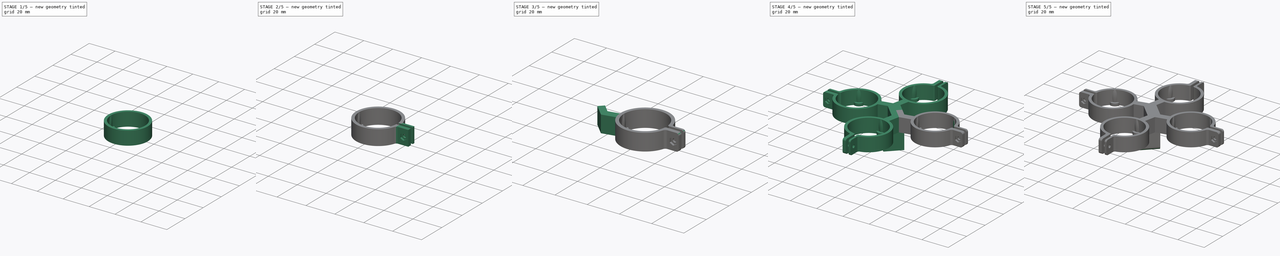
[diagram: build sequence overview — one tinted view per stage of 5, left to right]
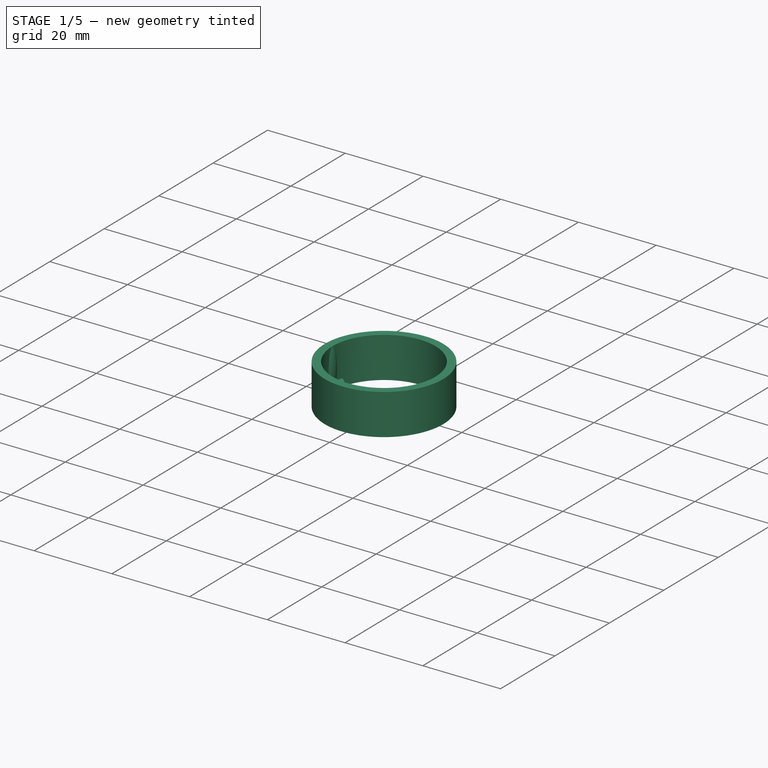
[diagram: stage 1 of 5 — iso view after this stage's code; geometry added in this stage tinted green]
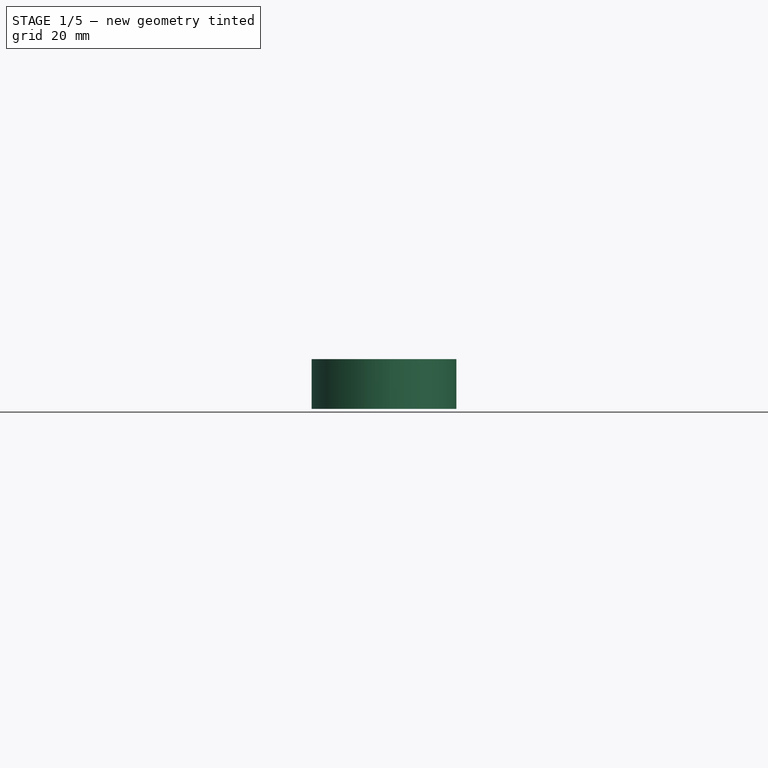
[diagram: stage 1 of 5 — front view after this stage's code; geometry added in this stage tinted green]
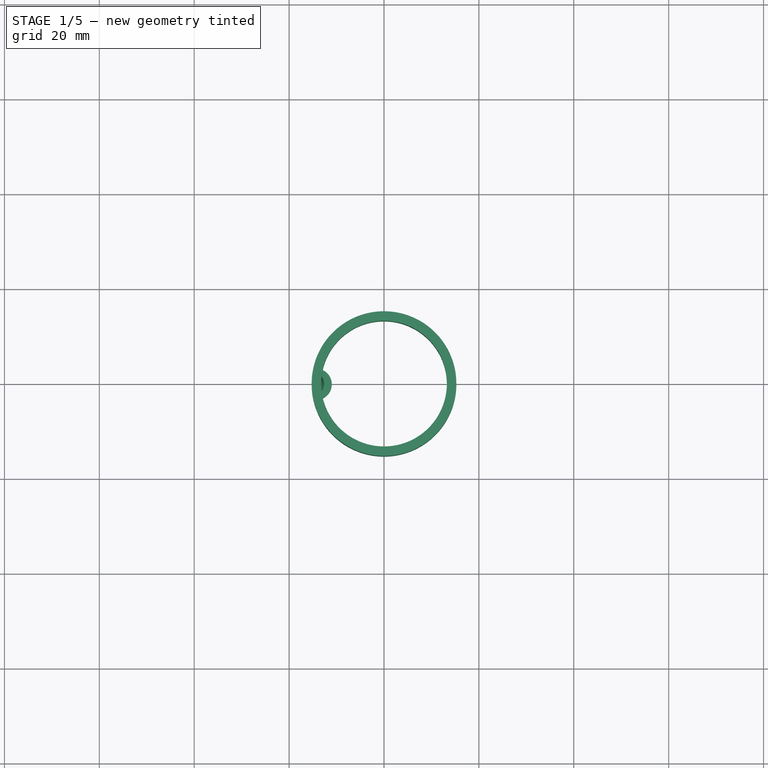
[diagram: stage 1 of 5 — top view after this stage's code; geometry added in this stage tinted green]
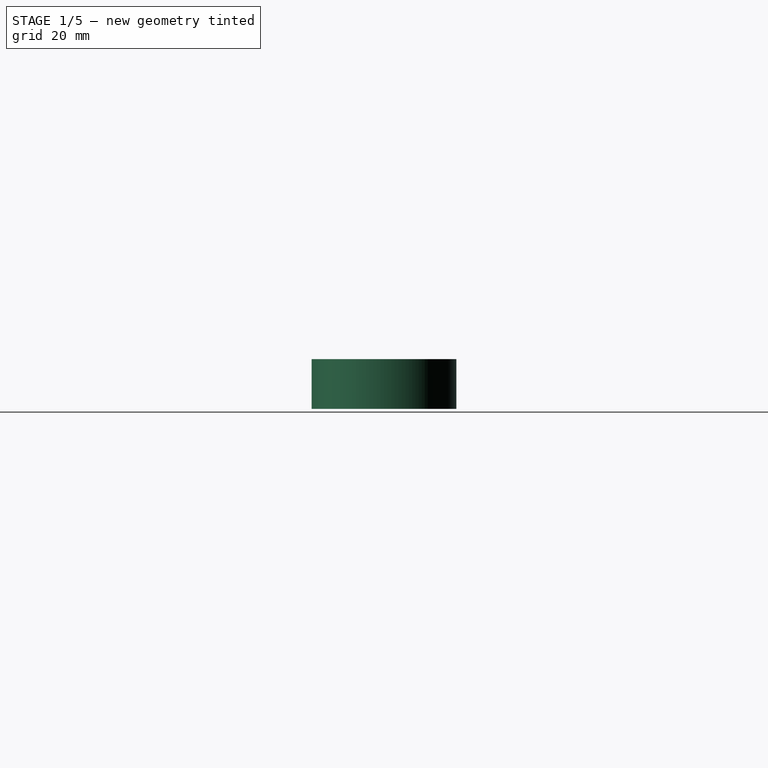
[diagram: stage 1 of 5 — right view after this stage's code; geometry added in this stage tinted green]
FCSTD DOCUMENT  (FreeCAD 0.19R)
Label: filter_holder
License: All rights reserved
LicenseURL: http://en.wikipedia.org/wiki/All_rights_reserved
objects: Sketcher::SketchObject×10, PartDesign::Pad×5, PartDesign::Fillet×4, PartDesign::Mirrored×3, PartDesign::MultiTransform×3, PartDesign::PolarPattern×3, PartDesign::Line×2, PartDesign::Hole×2, PartDesign::Pocket×2, PartDesign::Plane×2, PartDesign::Revolution×1, PartDesign::CoordinateSystem×1, PartDesign::Body×1
note: 53 computed .brp shape members not serialized (recipe doc carries the construction recipe); baked Part::Feature solids carry a one-line shape summary decoded from their .brp

FEATURE [Sketcher::SketchObject] Sketch  label="ring_base_sk"
  FullyConstrained = true
  MapMode = 5
  Support = -> [XY_Plane]
  sketch-geometry (2):
    g0: Circle CenterX=0 CenterY=0 CenterZ=0 NormalX=0 NormalY=0 NormalZ=1 AngleXU=0 Radius=13.25
    g1: Circle CenterX=0 CenterY=0 CenterZ=0 NormalX=0 NormalY=0 NormalZ=1 AngleXU=0 Radius=15.25
  constraints (4):
    c: Coincident(g0,g-1)
    c: Diameter(g0) = 26.5
    c: Coincident(g1,g0)
    c: Diameter(g1) = 30.5
FEATURE [PartDesign::Pad] Pad  label="ring_base"
  Direction = (1,1,1)
  Length = 10.5
  Length2 = 100
  Profile = -> Sketch
  Type = 0
FEATURE [PartDesign::Line] DatumLine  label="touch_rot_line"
  AttacherType = Attacher::AttachEngineLine
  AttachmentOffset = pos=(-15.25,0,0) rot=(0,0,1;0rad)
  Length = 20
  MapMode = 29
  Placement = pos=(-15.25,0,-5.1e-15) rot=(0,0,1;0rad)
  ResizeMode = 0
  Support = -> [Z_Axis]
FEATURE [Sketcher::SketchObject] Sketch002  label="front_sk"
  ExternalGeometry = -> [Pad]
  FullyConstrained = true
  MapMode = 5
  Placement = pos=(0,0,0) rot=(1,0,0;3.14159rad)
  Support = -> [Pad]
  sketch-geometry (3):
    g0: ArcOfCircle CenterX=-14.314 CenterY=-2.6e-15 CenterZ=0 NormalX=0 NormalY=0 NormalZ=1 AngleXU=0 Radius=3.31403 StartAngle=5.15124 EndAngle=7.41513
    g1: GeomPoint X=-11 Y=0 Z=0
    g2: ArcOfCircle CenterX=3.2e-15 CenterY=4e-16 CenterZ=0 NormalX=0 NormalY=0 NormalZ=1 AngleXU=0 Radius=13.25 StartAngle=2.9132 EndAngle=3.36999
  constraints (9):
    c: PointOnObject(g0,g-3)
    c: Symmetric(g0,g0,g-1)
    c: Distance(g0,g0) = 6
    c: PointOnObject(g1,g-1)
    c: PointOnObject(g1,g0)
    c: Distance(g-1,g1) = 11
    c: Coincident(g2,g0)
    c: Coincident(g2,g0)
    c: Tangent(g2,g-3)
FEATURE [PartDesign::Pad] Pad001  label="front"
  BaseFeature = -> Pad
  Direction = (1,1,1)
  Length = 2
  Length2 = 100
  Profile = -> Sketch002
  Reversed = true
  Type = 0
FEATURE [Sketcher::SketchObject] Sketch003  label="touch_sk"
  ExternalGeometry = -> [DatumLine,Pad001]
  FullyConstrained = true
  MapMode = 5
  Placement = pos=(0,0,0) rot=(1,0,0;1.5708rad)
  Support = -> [XZ_Plane]
  sketch-geometry (4):
    g0: LineSegment StartX=-13.25 StartY=10.5 StartZ=0 EndX=-13.25 EndY=2 EndZ=0
    g1: LineSegment StartX=-13.25 StartY=2 StartZ=0 EndX=-12.85 EndY=2 EndZ=0
    g2: ArcOfCircle CenterX=-37.0552 CenterY=5.12034 CenterZ=0 NormalX=0 NormalY=0 NormalZ=1 AngleXU=0 Radius=24.4055 StartAngle=6.15498 EndAngle=6.50544
    g3: GeomPoint X=-12.65 Y=5 Z=0
  constraints (11):
    c: Vertical(g0)
    c: Horizontal(g0,g-4)
    c: Coincident(g0,g-5)
    c: Coincident(g1,g0)
    c: Horizontal(g1)
    c: Distance(g1) = 0.4
    c: Coincident(g2,g0)
    c: PointOnObject(g3,g2)
    c: DistanceY(g-4,g3) = 3
    c: Distance(g3,g0) = 0.6
    c: Coincident(g2,g1)
FEATURE [PartDesign::Revolution] Revolution  label="touch"
  Angle = 140
  Axis = (-3e-16,3e-16,1)
  Base = (-15.25,0,-5.1e-15)
  BaseFeature = -> Pad001
  Midplane = true
  Profile = -> Sketch003
  ReferenceAxis = -> DatumLine
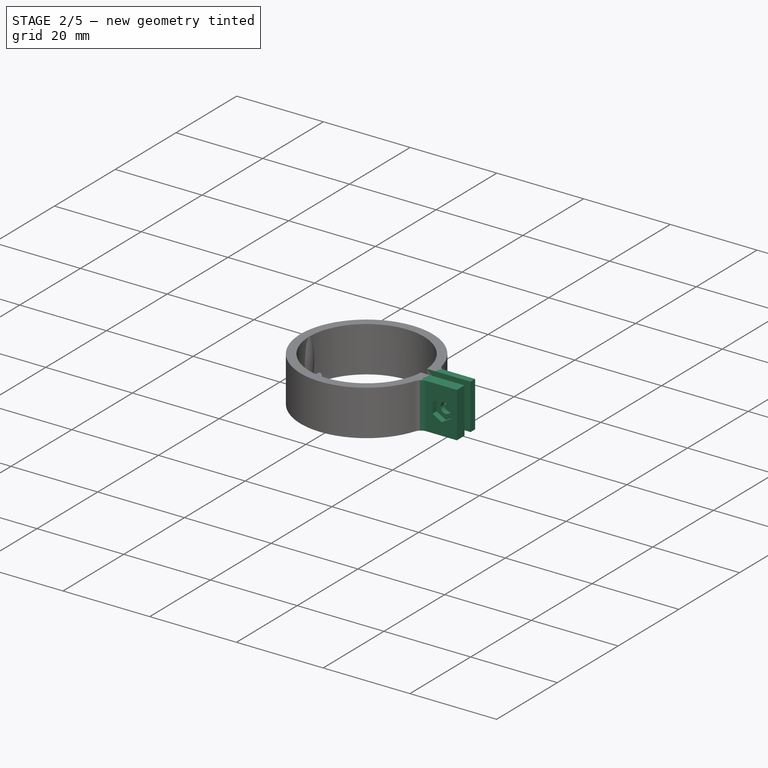
[diagram: stage 2 of 5 — iso view after this stage's code; geometry added in this stage tinted green]
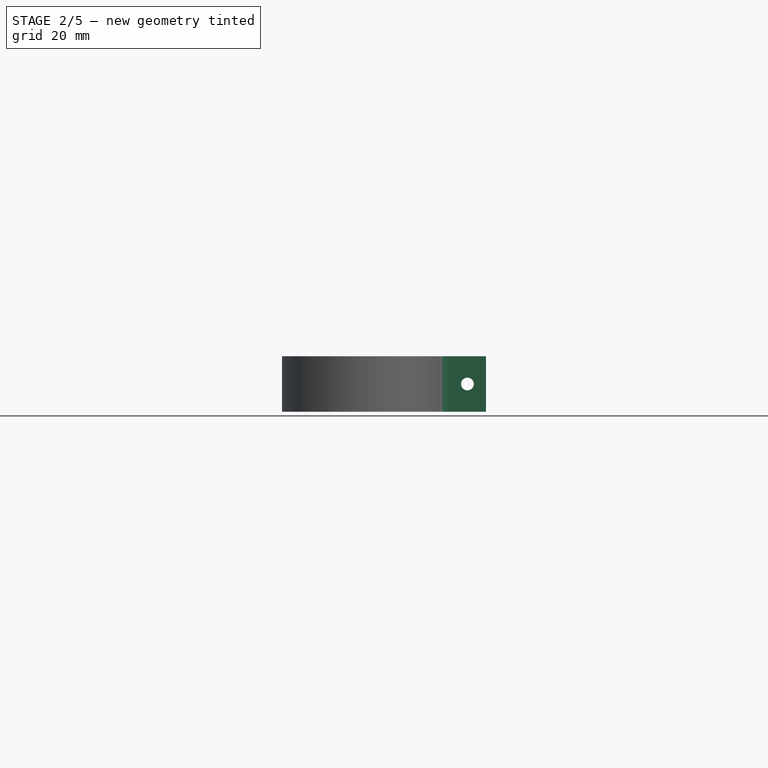
[diagram: stage 2 of 5 — front view after this stage's code; geometry added in this stage tinted green]
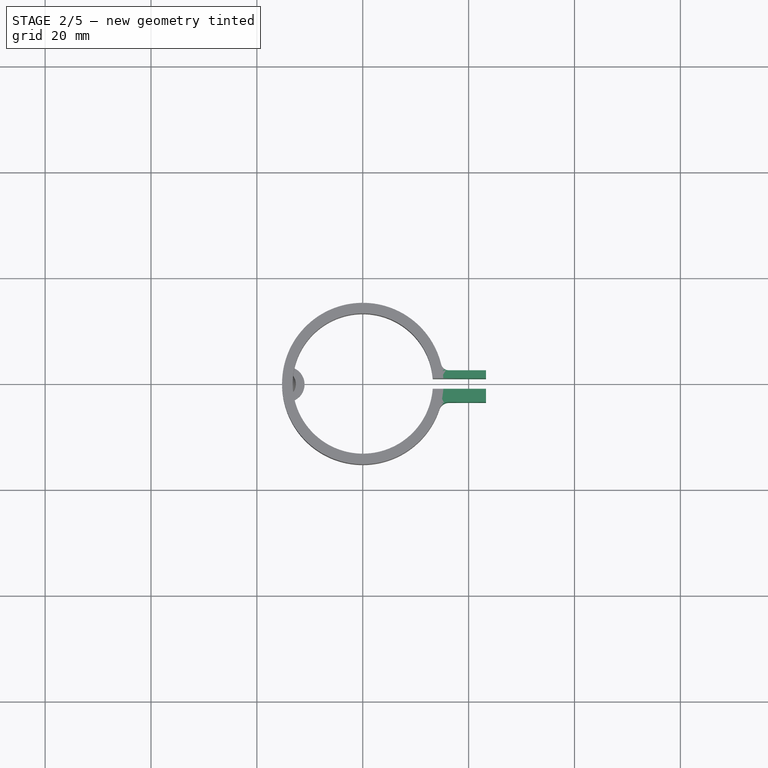
[diagram: stage 2 of 5 — top view after this stage's code; geometry added in this stage tinted green]
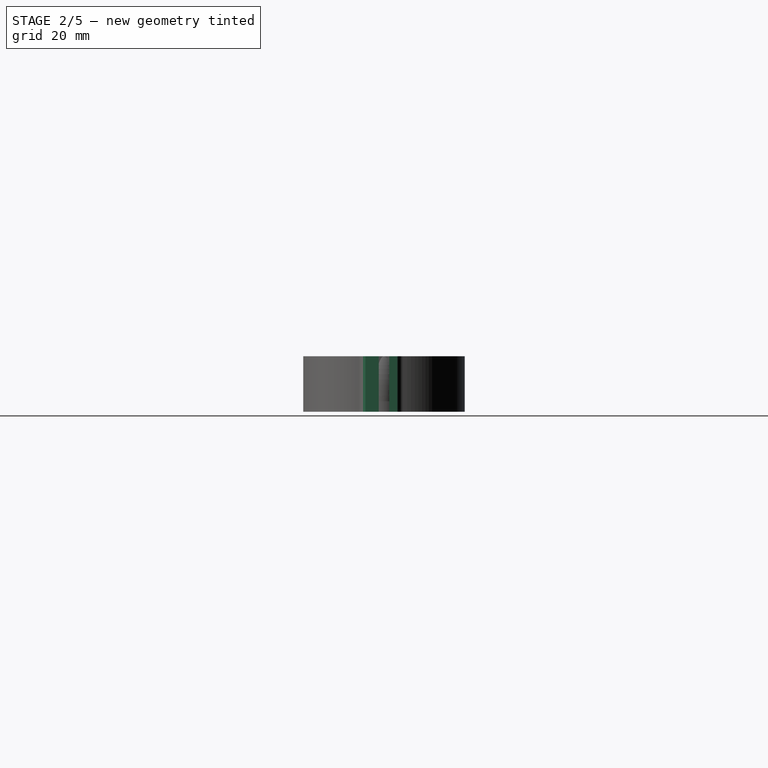
[diagram: stage 2 of 5 — right view after this stage's code; geometry added in this stage tinted green]
FEATURE [Sketcher::SketchObject] Sketch004  label="handle_sk"
  ExternalGeometry = -> [Revolution]
  FullyConstrained = true
  MapMode = 5
  Placement = pos=(0,0,10.5) rot=(0,0,1;0rad)
  Support = -> [Revolution]
  sketch-geometry (7):
    g0: LineSegment StartX=16.2654 StartY=2.5 StartZ=0 EndX=23.2654 EndY=2.5 EndZ=0
    g1: LineSegment StartX=23.2654 StartY=2.5 StartZ=0 EndX=23.2654 EndY=0 EndZ=0
    g2: ArcOfCircle CenterX=16.2654 CenterY=4 CenterZ=0 NormalX=0 NormalY=0 NormalZ=1 AngleXU=0 Radius=1.5 StartAngle=3.38273 EndAngle=4.71239
    g3: LineSegment StartX=23.2654 StartY=0 StartZ=0 EndX=23.2654 EndY=-3.5 EndZ=0
    g4: LineSegment StartX=23.2654 StartY=-3.5 StartZ=0 EndX=16.2654 EndY=-3.5 EndZ=0
    g5: ArcOfCircle CenterX=16.2654 CenterY=-5.38298 CenterZ=0 NormalX=0 NormalY=0 NormalZ=1 AngleXU=0 Radius=1.88298 StartAngle=1.5708 EndAngle=2.82199
    g6: ArcOfCircle CenterX=2.2e-15 CenterY=2.2e-15 CenterZ=0 NormalX=0 NormalY=0 NormalZ=1 AngleXU=0 Radius=15.25 StartAngle=5.96358 EndAngle=6.52432
  constraints (20):
    c: Horizontal(g0)
    c: Coincident(g1,g0)
    c: PointOnObject(g1,g-1)
    c: Vertical(g1)
    c: Tangent(g2,g0) = -1.5708
    c: Distance(g1) = 2.5
    c: Distance(g0) = 7
    c: Radius(g2) = 1.5
    c: Coincident(g3,g1)
    c: Vertical(g3)
    c: Coincident(g4,g3)
    c: Horizontal(g4)
    c: Distance(g3) = 3.5
    c: Tangent(g6,g2) = 1.5708
    c: Tangent(g5,g4) = -1.5708
    c: Tangent(g6,g5) = 1.5708
    c: Vertical(g4,g0)
    c: PointOnObject(g2,g-3)
    c: PointOnObject(g5,g-3)
    c: Tangent(g6,g-3)
FEATURE [PartDesign::Pad] Pad002  label="handle"
  BaseFeature = -> Revolution
  Direction = (1,1,1)
  Length = 10
  Length2 = 100
  Profile = -> Sketch004
  Reversed = true
  Type = 3
  UpToFace = -> Revolution [Face2]
FEATURE [Sketcher::SketchObject] Sketch005  label="M2_hole_sk"
  ExternalGeometry = -> [Pad002]
  FullyConstrained = true
  MapMode = 5
  Placement = pos=(0,2.5,0) rot=(0,0.707107,0.707107;3.14159rad)
  Support = -> [Pad002]
  sketch-geometry (1):
    g0: Circle CenterX=-19.7654 CenterY=5.25 CenterZ=0 NormalX=0 NormalY=0 NormalZ=1 AngleXU=0 Radius=1
  constraints (3):
    c: Radius(g0) = 1
    c: DistanceY(g0,g-3) = 5.25
    c: DistanceX(g-3,g0) = 3.5
FEATURE [PartDesign::Hole] Hole  label="M2_hole"
  BaseFeature = -> Pad002
  Depth = 25
  DepthType = 1
  Diameter = 2.4
  DrillForDepth = false
  DrillPoint = 1
  DrillPointAngle = 118
  HoleCutCountersinkAngle = 90
  HoleCutCustomValues = false
  HoleCutDepth = 0
  HoleCutDiameter = 6.1
  HoleCutType = 0
  ModelActualThread = false
  Profile = -> Sketch005
  Tapered = false
  TaperedAngle = 90
  ThreadAngle = 0
  ThreadClass = 0
  ThreadCutOffInner = 0
  ThreadCutOffOuter = 0
  ThreadDirection = 0
  ThreadFit = 0
  ThreadPitch = 0
  ThreadSize = 6
  ThreadType = 1
  Threaded = false
FEATURE [Sketcher::SketchObject] Sketch006  label="M2_hex_sk"
  ExternalGeometry = -> [Hole]
  FullyConstrained = true
  MapMode = 5
  Placement = pos=(0,-3.5,0) rot=(1,0,0;1.5708rad)
  Support = -> [Hole]
  sketch-geometry (7):
    g0: LineSegment StartX=19.7654 StartY=7.67487 StartZ=0 EndX=17.6654 EndY=6.46244 EndZ=0
    g1: LineSegment StartX=17.6654 StartY=6.46244 StartZ=0 EndX=17.6654 EndY=4.03756 EndZ=0
    g2: LineSegment StartX=17.6654 StartY=4.03756 StartZ=0 EndX=19.7654 EndY=2.82513 EndZ=0
    g3: LineSegment StartX=19.7654 StartY=2.82513 StartZ=0 EndX=21.8654 EndY=4.03756 EndZ=0
    g4: LineSegment StartX=21.8654 StartY=4.03756 StartZ=0 EndX=21.8654 EndY=6.46244 EndZ=0
    g5: LineSegment StartX=21.8654 StartY=6.46244 StartZ=0 EndX=19.7654 EndY=7.67487 EndZ=0
    g6: Circle CenterX=19.7654 CenterY=5.25 CenterZ=0 NormalX=0 NormalY=0 NormalZ=1 AngleXU=0 Radius=2.42487
  constraints (16):
    c: Coincident(g0,g1)
    c: Coincident(g1,g2)
    c: Coincident(g2,g3)
    c: Coincident(g3,g4)
    c: Coincident(g4,g5)
    c: Coincident(g5,g0)
    c: Equal(g0, g1-g5) x5
    c: PointOnObject(g0,g6)
    c: PointOnObject(g1,g6)
    c: PointOnObject(g2,g6)
    c: PointOnObject(g3,g6)
    c: PointOnObject(g4,g6)
    c: PointOnObject(g5,g6)
    c: Vertical(g0,g6)
    c: Distance(g4,g0) = 4.2
    c: Coincident(g6,g-3)
FEATURE [PartDesign::Pocket] Pocket  label="M2_hex"
  BaseFeature = -> Hole
  Length = 1.35
  Length2 = 100
  Profile = -> Sketch006
  Type = 0
FEATURE [Sketcher::SketchObject] Sketch007  label="tense_space_sk"
  ExternalGeometry = -> [Pocket]
  FullyConstrained = true
  MapMode = 5
  Placement = pos=(0,0,10.5) rot=(0,0,1;0rad)
  Support = -> [Pocket]
  sketch-geometry (4):
    g0: LineSegment StartX=23.2654 StartY=1 StartZ=0 EndX=11.2654 EndY=1 EndZ=0
    g1: LineSegment StartX=11.2654 StartY=1 StartZ=0 EndX=11.2654 EndY=-1 EndZ=0
    g2: LineSegment StartX=11.2654 StartY=-1 StartZ=0 EndX=23.2654 EndY=-1 EndZ=0
    g3: LineSegment StartX=23.2654 StartY=-1 StartZ=0 EndX=23.2654 EndY=1 EndZ=0
  constraints (11):
    c: Coincident(g0,g1)
    c: Coincident(g1,g2)
    c: Coincident(g2,g3)
    c: Coincident(g3,g0)
    c: Horizontal(g0)
    c: Horizontal(g2)
    c: Vertical(g1)
    c: Distance(g3) = 2
    c: Symmetric(g0,g2,g-1)
    c: Distance(g0) = 12
    c: Vertical(g0,g-3)
FEATURE [PartDesign::Pocket] Pocket001  label="tense_space"
  BaseFeature = -> Pocket
  Length = 5
  Length2 = 100
  Profile = -> Sketch007
  Type = 1
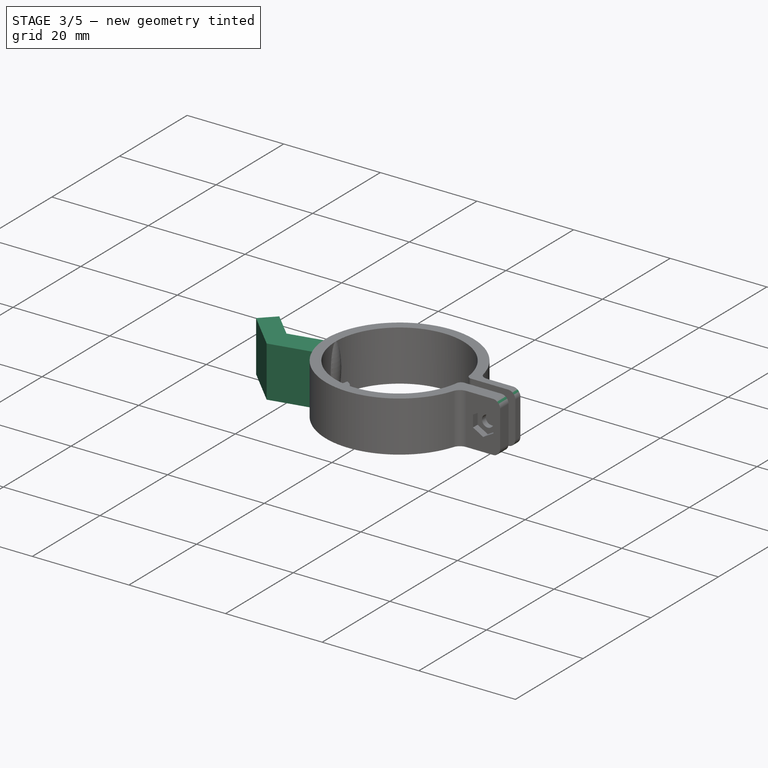
[diagram: stage 3 of 5 — iso view after this stage's code; geometry added in this stage tinted green]
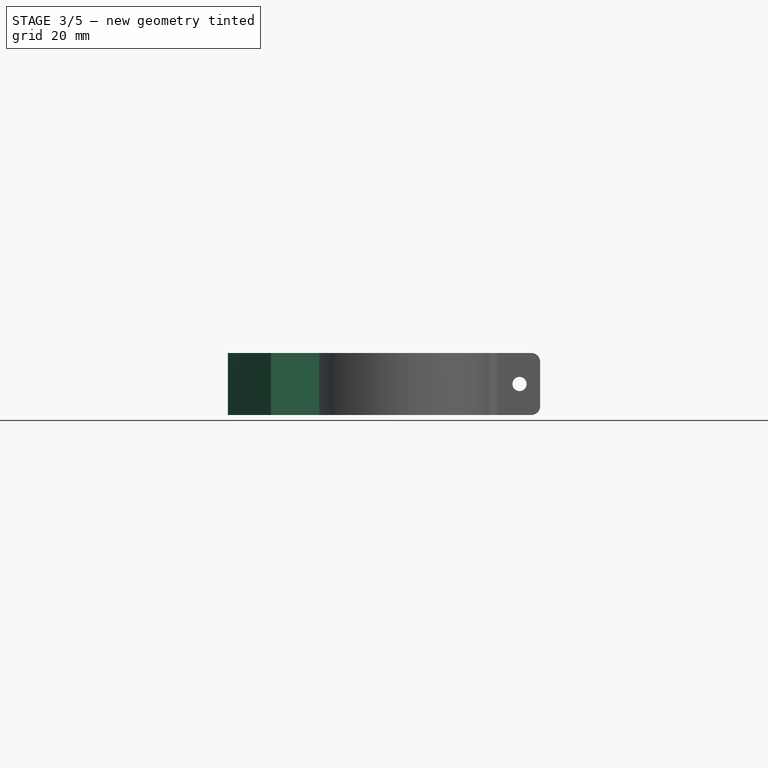
[diagram: stage 3 of 5 — front view after this stage's code; geometry added in this stage tinted green]
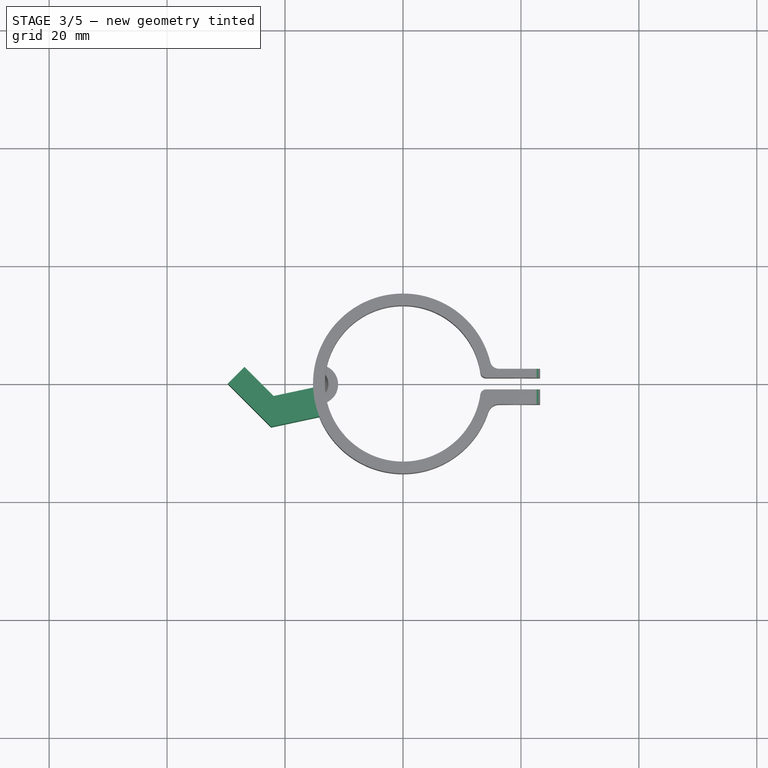
[diagram: stage 3 of 5 — top view after this stage's code; geometry added in this stage tinted green]
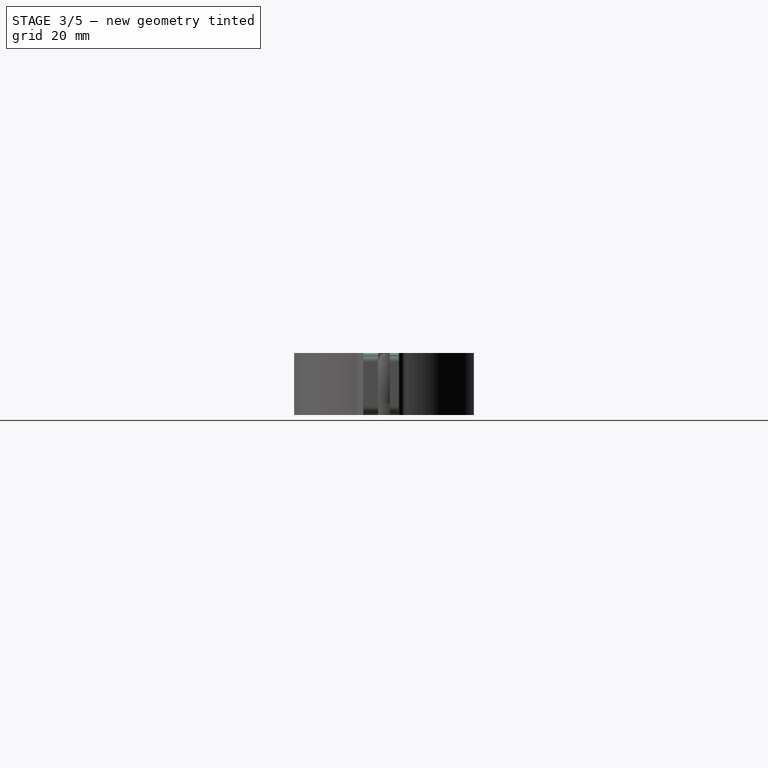
[diagram: stage 3 of 5 — right view after this stage's code; geometry added in this stage tinted green]
FEATURE [PartDesign::Fillet] Fillet  label="out_fillet"
  Base = -> Pocket001 [Edge56,Edge48,Edge46,Edge43]
  BaseFeature = -> Pocket001
  Radius = 1.5
  SupportTransform = false
FEATURE [PartDesign::Fillet] Fillet001  label="inner_fillet"
  Base = -> Fillet [Edge5,Edge43]
  BaseFeature = -> Fillet
  Radius = 1
  SupportTransform = false
FEATURE [PartDesign::CoordinateSystem] Local_CS  label="quad_cs"
  AttacherType = Attacher::AttachEngine3D
  AttachmentOffset = pos=(-29.6985,0,0) rot=(0,0,-1;0.785398rad)
  MapMode = 2
  Placement = pos=(-29.6985,0,0) rot=(0,0,-1;0.785398rad)
  Support = -> [Fillet001]
  expr: .AttachmentOffset.Base.x = -sqrt(2) * 21
FEATURE [PartDesign::Plane] DatumPlane
  Length = 181.237
  MapMode = 5
  Placement = pos=(-29.6985,0,0) rot=(0,0,-1;0.785398rad)
  ResizeMode = 0
  Support = -> [Local_CS]
  Width = 181.237
FEATURE [Sketcher::SketchObject] Sketch008  label="cross_connect_sk"
  ExternalGeometry = -> [Fillet001]
  FullyConstrained = true
  MapMode = 5
  Placement = pos=(-29.6985,-1.8e-15,0) rot=(0,0,-1;0.785398rad)
  Support = -> [DatumPlane]
  sketch-geometry (6):
    g0: LineSegment StartX=0 StartY=0 StartZ=0 EndX=0 EndY=4 EndZ=0
    g1: LineSegment StartX=0 StartY=4 StartZ=0 EndX=7 EndY=4 EndZ=0
    g2: LineSegment StartX=7 StartY=4 StartZ=0 EndX=10.7189 EndY=9.73669 EndZ=0
    g3: LineSegment StartX=0 StartY=0 StartZ=0 EndX=10.3656 EndY=0 EndZ=0
    g4: LineSegment StartX=10.3656 StartY=0 StartZ=0 EndX=14.9145 EndY=7.01684 EndZ=0
    g5: ArcOfCircle CenterX=21 CenterY=21 CenterZ=0 NormalX=0 NormalY=0 NormalZ=1 AngleXU=0 Radius=15.25 StartAngle=3.97255 EndAngle=4.30191
  constraints (18):
    c: Coincident(g0,g-1)
    c: PointOnObject(g0,g-2)
    c: Coincident(g1,g0)
    c: Horizontal(g1)
    c: Coincident(g2,g1)
    c: PointOnObject(g2,g-3)
    c: Coincident(g3,g0)
    c: PointOnObject(g3,g-1)
    c: Coincident(g4,g3)
    c: PointOnObject(g4,g-3)
    c: Distance(g0) = 4
    c: Distance(g1) = 7
    c: Parallel(g2,g4)
    c: Distance(g1,g4) = 5
    c: Distance(g-3,g4) = 2.5
    c: Coincident(g5,g2)
    c: Coincident(g5,g4)
    c: Tangent(g5,g-3)
FEATURE [PartDesign::Pad] Pad003  label="cross_connect"
  BaseFeature = -> Fillet001
  Direction = (1,1,1)
  Length = 8
  Length2 = 100
  Profile = -> Sketch008
  Type = 3
  UpToFace = -> Fillet001 [Face2]
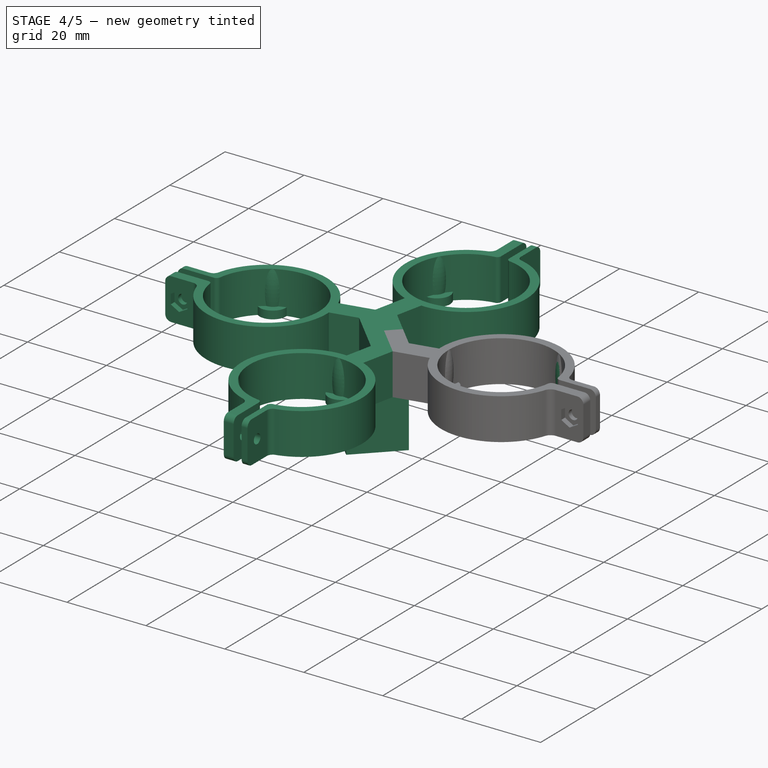
[diagram: stage 4 of 5 — iso view after this stage's code; geometry added in this stage tinted green]
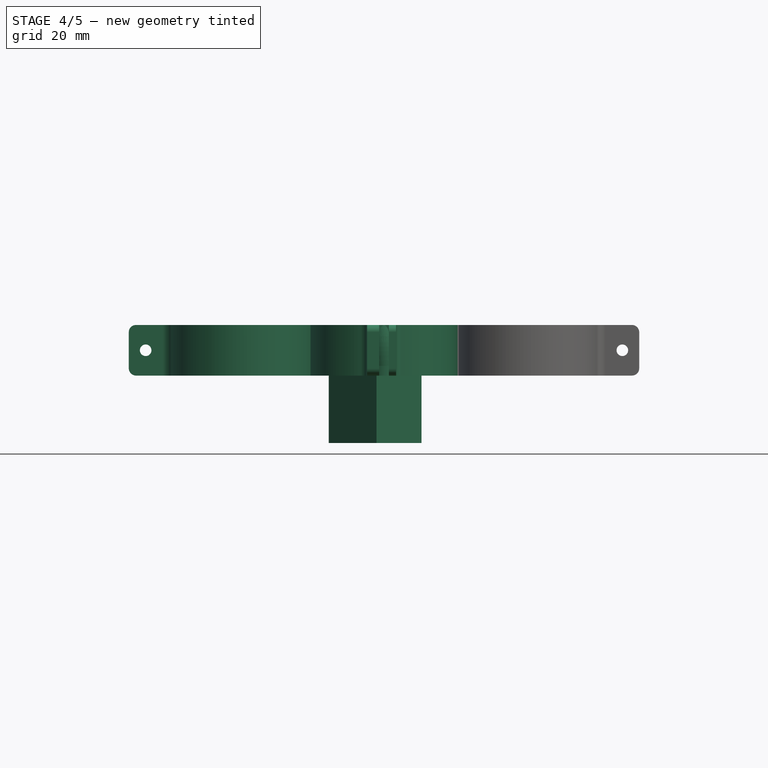
[diagram: stage 4 of 5 — front view after this stage's code; geometry added in this stage tinted green]
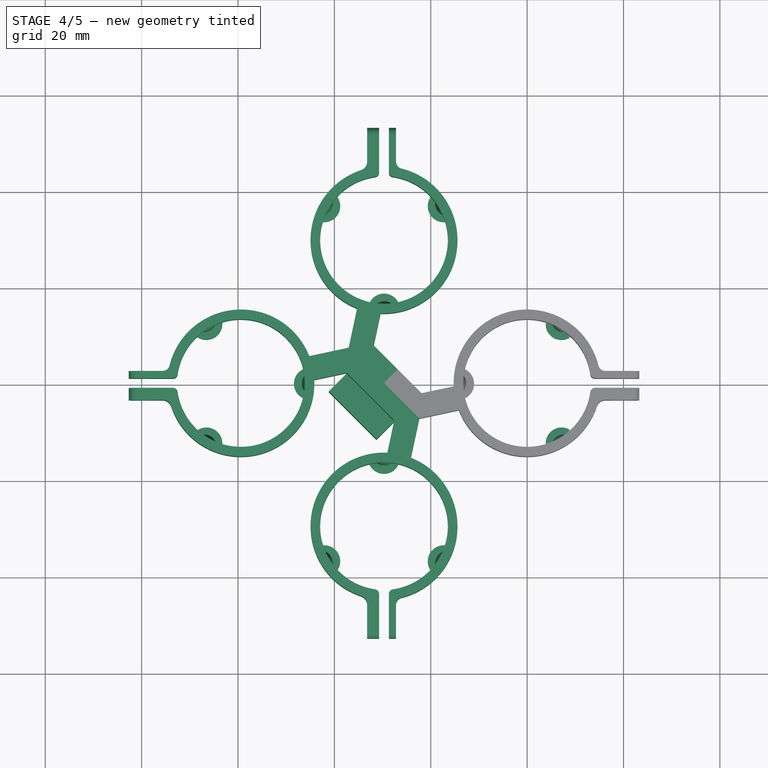
[diagram: stage 4 of 5 — top view after this stage's code; geometry added in this stage tinted green]
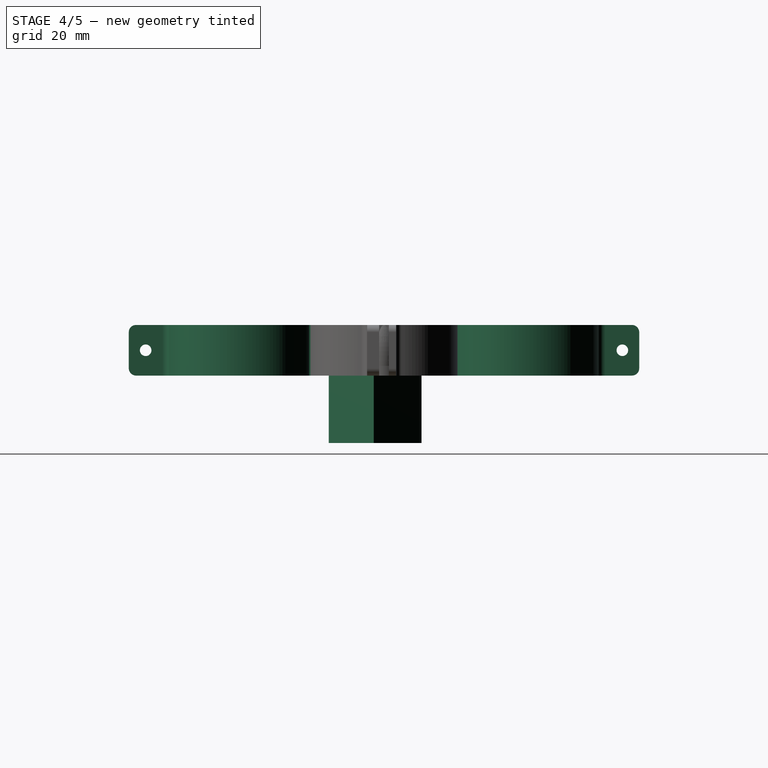
[diagram: stage 4 of 5 — right view after this stage's code; geometry added in this stage tinted green]
FEATURE [PartDesign::Mirrored] Mirrored
  MirrorPlane = -> Sketch008 [H_Axis]
FEATURE [PartDesign::Mirrored] Mirrored001
  MirrorPlane = -> Sketch008 [V_Axis]
FEATURE [PartDesign::MultiTransform] MultiTransform  label="quad_corss_connector"
  BaseFeature = -> Pad003
  Originals = -> [Pad003]
  Transformations = -> [Mirrored,Mirrored001]
FEATURE [PartDesign::Plane] DatumPlane001  label="mirror_plane"
  Length = 168.411
  MapMode = 5
  Placement = pos=(-14.8492,14.8492,0) rot=(-0.281085,0.678598,0.678598;3.68962rad)
  ResizeMode = 0
  Support = -> [Pad003]
  Width = 67.3799
FEATURE [PartDesign::Line] DatumLine001  label="rot_ax"
  AttacherType = Attacher::AttachEngineLine
  Length = 20
  MapMode = 29
  Placement = pos=(-29.6985,-1.8e-15,0) rot=(0,0,1;0rad)
  ResizeMode = 0
  Support = -> [Pad003]
FEATURE [PartDesign::PolarPattern] PolarPattern
  Angle = 90
  Axis = -> DatumLine001
  Occurrences = 2
  Reversed = true
FEATURE [PartDesign::Mirrored] Mirrored002
  MirrorPlane = -> DatumPlane001
FEATURE [PartDesign::MultiTransform] MultiTransform001  label="quad_ring"
  BaseFeature = -> MultiTransform
  Originals = -> [Pad,Pad001,Pad002,Hole,Pocket,Pocket001,Fillet,Fillet001]
  Transformations = -> [PolarPattern,Mirrored002]
FEATURE [PartDesign::PolarPattern] PolarPattern001
  Angle = 360
  Axis = -> Z_Axis
  Occurrences = 3
FEATURE [PartDesign::PolarPattern] PolarPattern002
  Angle = 360
  Axis = -> DatumLine001
  Occurrences = 4
FEATURE [PartDesign::MultiTransform] MultiTransform002  label="quad_tri_touch"
  BaseFeature = -> MultiTransform001
  Originals = -> [Pad001,Revolution]
  Transformations = -> [PolarPattern001,PolarPattern002]
FEATURE [Sketcher::SketchObject] Sketch009  label="extended_platform_sk"
  ExternalGeometry = -> [MultiTransform002]
  FullyConstrained = true
  MapMode = 5
  Placement = pos=(0,0,0) rot=(1,0,0;3.14159rad)
  Support = -> [MultiTransform002]
  sketch-geometry (4):
    g0: LineSegment StartX=-31.8198 StartY=-7.77817 StartZ=0 EndX=-41.1536 EndY=1.55563 EndZ=0
    g1: LineSegment StartX=-21.9203 StartY=2.12132 StartZ=0 EndX=-31.2541 EndY=11.4551 EndZ=0
    g2: LineSegment StartX=-41.1536 StartY=1.55563 StartZ=0 EndX=-31.2541 EndY=11.4551 EndZ=0
    g3: LineSegment StartX=-31.8198 StartY=-7.77817 StartZ=0 EndX=-21.9203 EndY=2.12132 EndZ=0
  constraints (10):
    c: Coincident(g0,g-5)
    c: Coincident(g1,g-6)
    c: PointOnObject(g-4,g1)
    c: PointOnObject(g-3,g0)
    c: Coincident(g2,g0)
    c: Coincident(g2,g1)
    c: Coincident(g3,g0)
    c: Coincident(g3,g1)
    c: Parallel(g2,g3)
    c: Distance(g0,g-3) = 5.2
FEATURE [PartDesign::Pad] Pad004  label="extended_platform"
  BaseFeature = -> MultiTransform002
  Direction = (1,1,1)
  Length = 14
  Length2 = 100
  Profile = -> Sketch009
  Type = 0
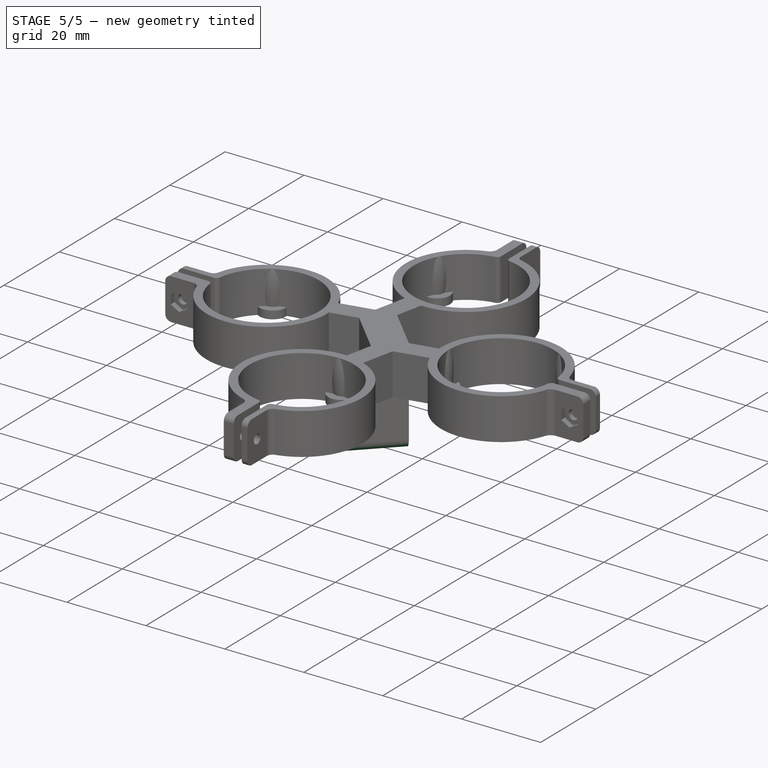
[diagram: stage 5 of 5 — iso view after this stage's code; geometry added in this stage tinted green]
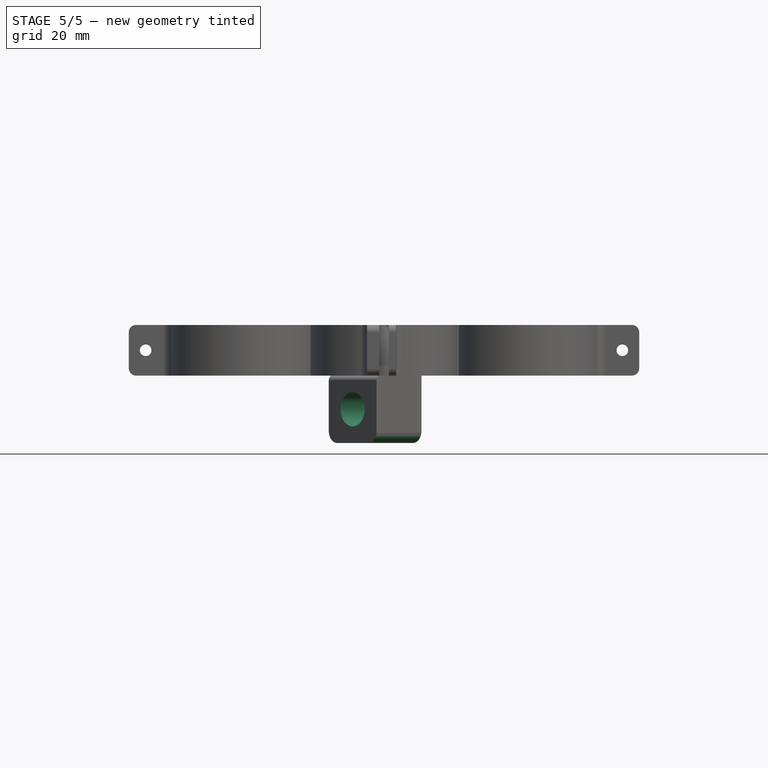
[diagram: stage 5 of 5 — front view after this stage's code; geometry added in this stage tinted green]
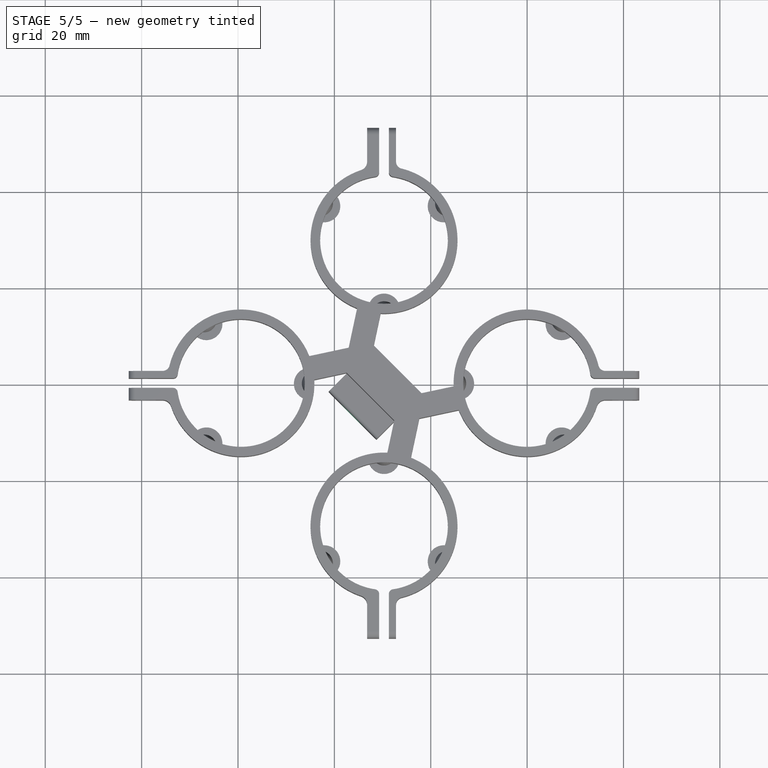
[diagram: stage 5 of 5 — top view after this stage's code; geometry added in this stage tinted green]
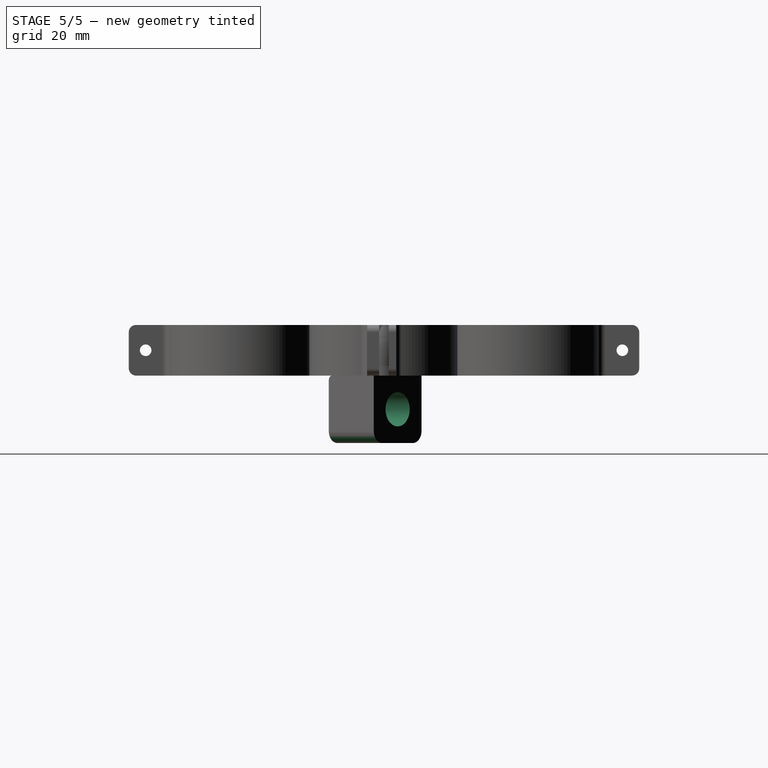
[diagram: stage 5 of 5 — right view after this stage's code; geometry added in this stage tinted green]
FEATURE [Sketcher::SketchObject] Sketch010  label="1on4_hole_sk"
  ExternalGeometry = -> [Pad004]
  FullyConstrained = true
  MapMode = 5
  Placement = pos=(-12.0208,-12.0208,0) rot=(0.281085,0.678598,0.678598;2.59356rad)
  Support = -> [Pad004]
  sketch-geometry (1):
    g0: Circle CenterX=21 CenterY=-7 CenterZ=0 NormalX=0 NormalY=0 NormalZ=1 AngleXU=0 Radius=1
  constraints (3):
    c: Vertical(g-3,g0)
    c: DistanceY(g0,g-3) = 7
    c: Radius(g0) = 1
FEATURE [PartDesign::Hole] Hole001  label="1on4_hole"
  BaseFeature = -> Pad004
  Depth = 25
  DepthType = 1
  Diameter = 7.1
  DrillForDepth = false
  DrillPoint = 1
  DrillPointAngle = 118
  HoleCutCountersinkAngle = 90
  HoleCutCustomValues = false
  HoleCutDepth = 0
  HoleCutDiameter = 6.1
  HoleCutType = 0
  ModelActualThread = false
  Profile = -> Sketch010
  Tapered = false
  TaperedAngle = 90
  ThreadAngle = 0
  ThreadClass = 0
  ThreadCutOffInner = 0
  ThreadCutOffOuter = 0
  ThreadDirection = 0
  ThreadFit = 0
  ThreadPitch = 0
  ThreadSize = 9
  ThreadType = 3
  Threaded = false
FEATURE [PartDesign::Fillet] Fillet002  label="platform_fillet"
  Base = -> Hole001 [Edge191,Edge134]
  BaseFeature = -> Hole001
  Radius = 2.5
  SupportTransform = false
FEATURE [PartDesign::Fillet] Fillet003  label="platform_fillet_2"
  Base = -> Fillet002 [Edge20]
  BaseFeature = -> Fillet002
  Radius = 1
  SupportTransform = false
FEATURE [PartDesign::Body] Body
  Group = -> [Sketch,Pad,Sketch002,Pad001,DatumLine,Sketch003,Revolution,Sketch004,PolarPattern,Mirrored002,Pad002,Sketch005,Hole,Sketch006,Pocket,Sketch007,Pocket001,Fillet,Fillet001,Local_CS,DatumPlane,Sketch008,Pad003,DatumPlane001,DatumLine001,MultiTransform,MultiTransform001,Mirrored,Mirrored001,MultiTransform002,PolarPattern001,PolarPattern002,Sketch009,Pad004,Sketch010,Hole001,Fillet002,Fillet003]
  Origin = -> Origin
  Tip = -> Fillet003
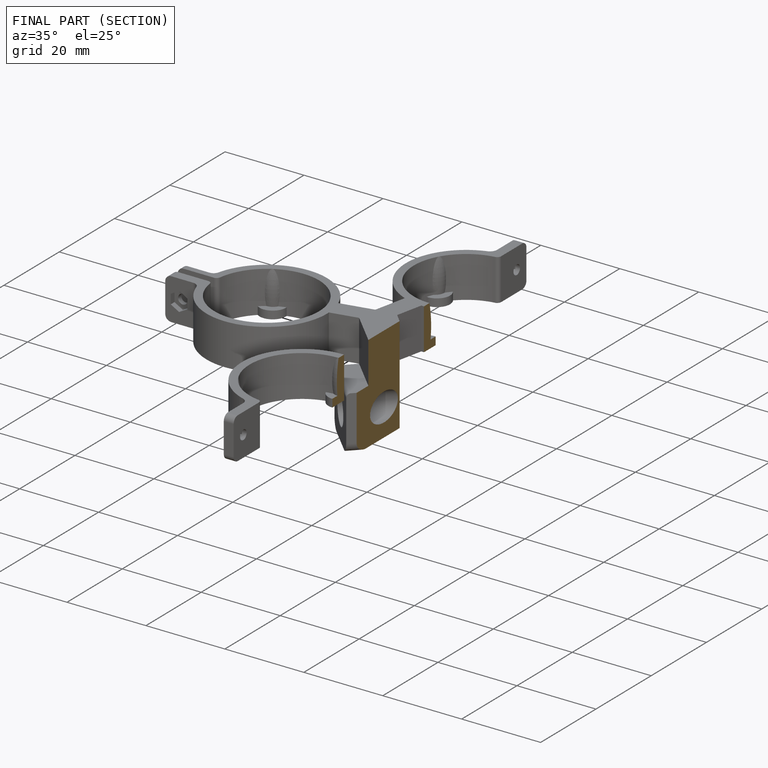
[diagram: finished part — half-section view (interior)]
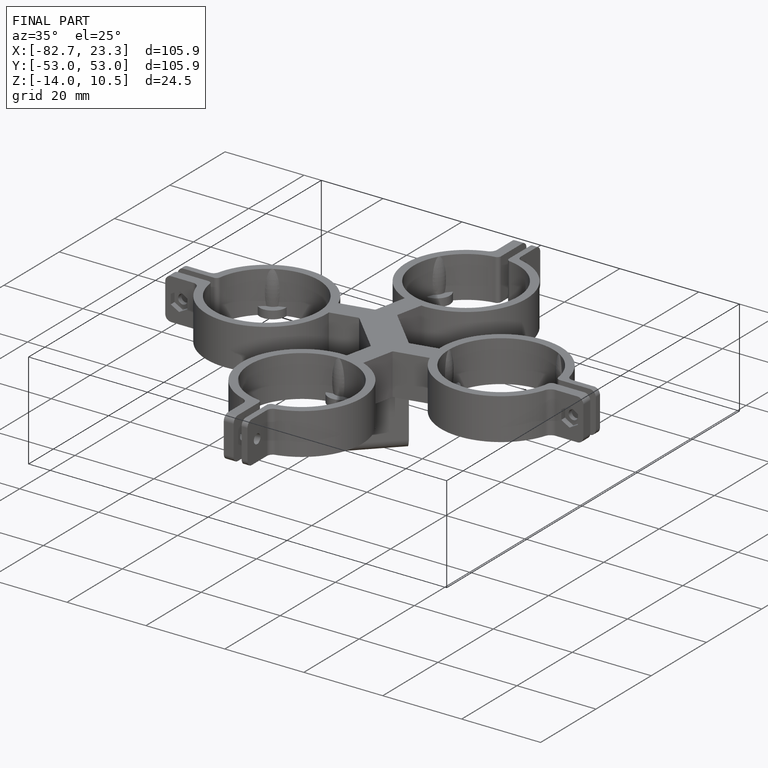
[diagram: finished part — iso view with bounding-box wireframe]
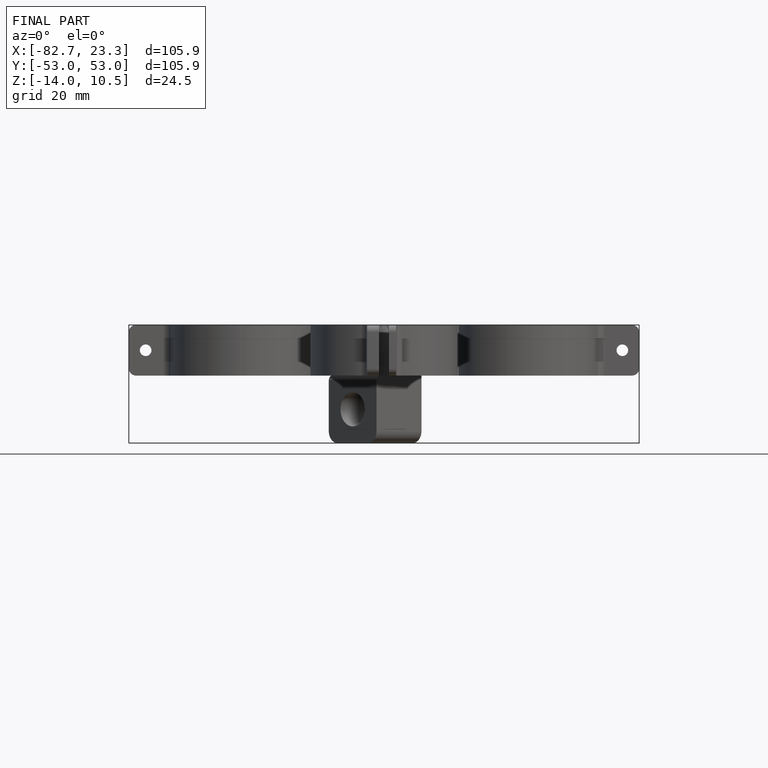
[diagram: finished part — front view with bounding-box wireframe]
